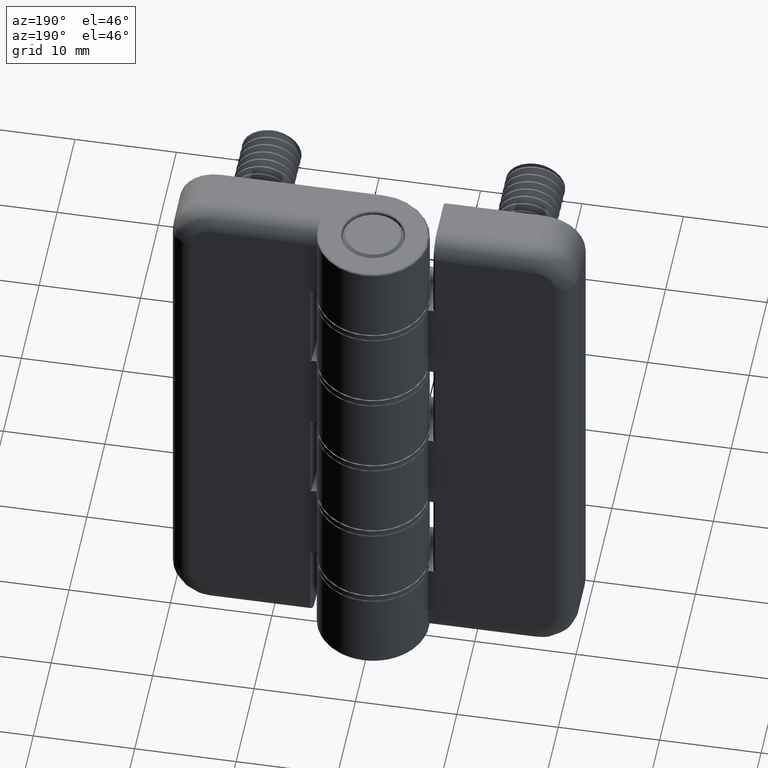
[diagram: clean part render]
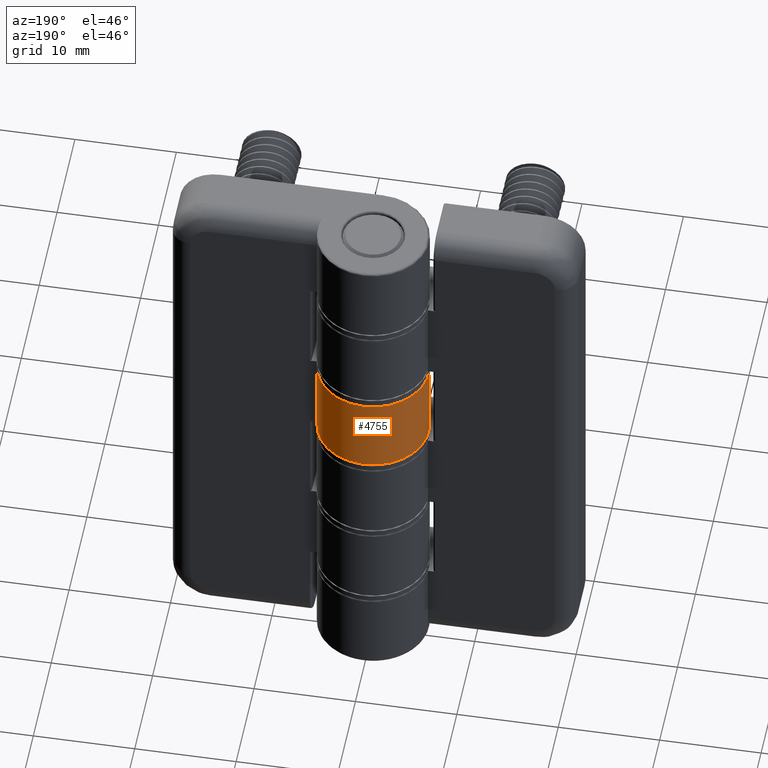
[diagram: same view with one face highlighted and labeled with its STEP entity id]
A machine part, auxiliary view. The second image highlights one B-rep face of the part: STEP entity #4755.
In plain terms, the highlighted cylindrical surface (partial cylindrical patch) has radius 5.5 mm, axis along (0, 0, -1).
Its self-contained STEP definition (entity closure, byte-faithful):
#212=LINE('',#17206,#420);
#252=LINE('',#17476,#460);
#420=VECTOR('',#5557,8.10000000000001);
#460=VECTOR('',#5815,8.10000000000001);
#813=FACE_OUTER_BOUND('',#1100,.T.);
#1100=EDGE_LOOP('',(#3616,#3617,#3618,#3619));
#1376=CIRCLE('',#5029,5.5);
#1388=CIRCLE('',#5058,5.5);
#1967=VERTEX_POINT('',#17203);
#1968=VERTEX_POINT('',#17205);
#1995=VERTEX_POINT('',#17292);
#2011=VERTEX_POINT('',#17368);
#2517=EDGE_CURVE('',#1967,#1968,#212,.T.);
#2551=EDGE_CURVE('',#1968,#1995,#1376,.T.);
#2579=EDGE_CURVE('',#2011,#1967,#1388,.T.);
#2620=EDGE_CURVE('',#2011,#1995,#252,.T.);
#3616=ORIENTED_EDGE('',*,*,#2551,.F.);
#3617=ORIENTED_EDGE('',*,*,#2517,.F.);
#3618=ORIENTED_EDGE('',*,*,#2579,.F.);
#3619=ORIENTED_EDGE('',*,*,#2620,.T.);
#4616=CYLINDRICAL_SURFACE('',#5112,5.5);
#4755=ADVANCED_FACE('',(#813),#4616,.T.);
#5029=AXIS2_PLACEMENT_3D('',#17293,#5644,#5645);
#5058=AXIS2_PLACEMENT_3D('',#17379,#5713,#5714);
#5112=AXIS2_PLACEMENT_3D('',#17522,#5842,#5843);
#5557=DIRECTION('',(0.,0.,-1.));
#5644=DIRECTION('center_axis',(0.,0.,-1.));
#5645=DIRECTION('ref_axis',(-0.738548945875997,0.674199862463242,0.));
#5713=DIRECTION('center_axis',(-1.0035750557255E-16,-5.40214367905905E-32,
1.));
#5714=DIRECTION('ref_axis',(-0.738548945875997,0.674199862463242,-7.41189299513512E-17));
#5815=DIRECTION('',(0.,0.,-1.));
#5842=DIRECTION('center_axis',(0.,0.,-1.));
#5843=DIRECTION('ref_axis',(-0.995859195463938,-0.0909090909090914,0.));
#17203=CARTESIAN_POINT('',(0.,-5.50000000000001,-18.4));
#17205=CARTESIAN_POINT('',(0.,-5.50000000000001,-26.5));
#17206=CARTESIAN_POINT('',(0.,-5.50000000000001,0.));
#17292=CARTESIAN_POINT('',(5.47722557505166,0.500000000000003,-26.5));
#17293=CARTESIAN_POINT('Origin',(0.,0.,-26.5));
#17368=CARTESIAN_POINT('',(5.47722557505166,0.500000000000003,-18.4));
#17379=CARTESIAN_POINT('Origin',(0.,0.,-18.4));
#17476=CARTESIAN_POINT('',(5.47722557505166,0.500000000000003,0.));
#17522=CARTESIAN_POINT('Origin',(0.,0.,0.));